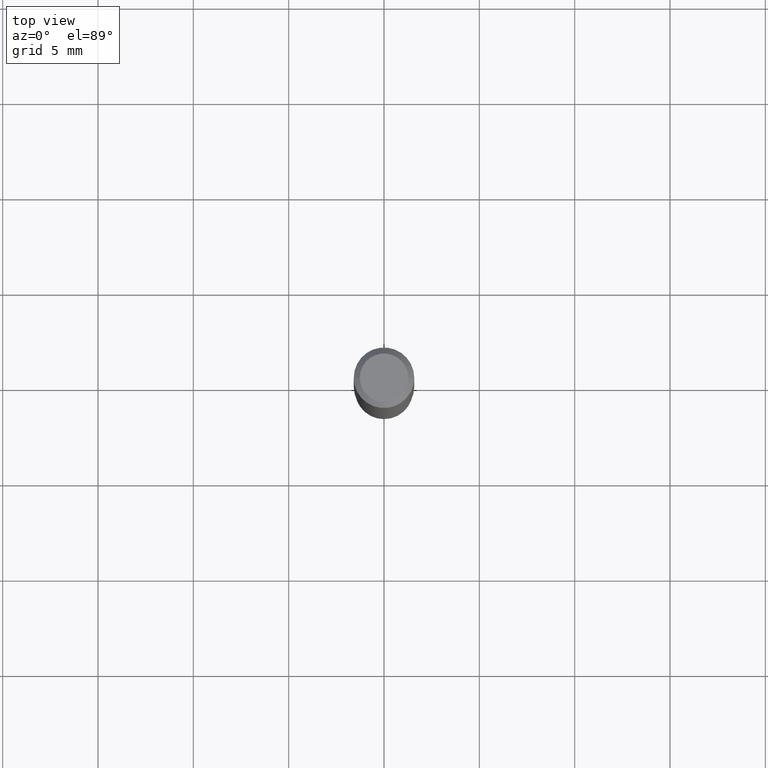
[diagram: clean part render]
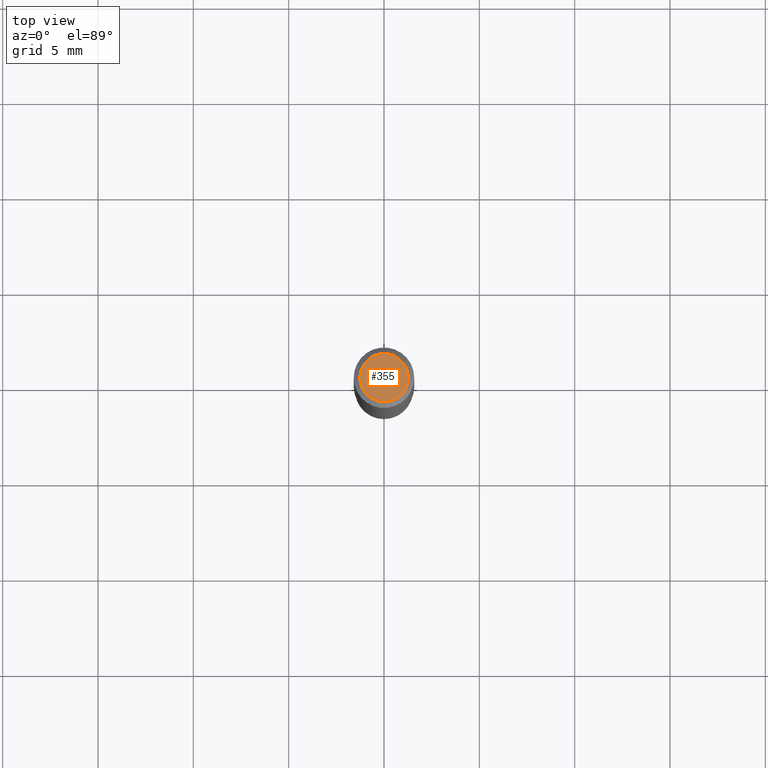
[diagram: same view with one face highlighted and labeled with its STEP entity id]
A machine part, top view. The second image highlights one B-rep face of the part: STEP entity #355.
In plain terms, the highlighted planar face has unit normal (0, -0, -1).
Its self-contained STEP definition (entity closure, byte-faithful):
#8 = AXIS2_PLACEMENT_3D ( 'NONE', #146, #350, #230 ) ;
#17 = FACE_OUTER_BOUND ( 'NONE', #48, .T. ) ;
#48 = EDGE_LOOP ( 'NONE', ( #190, #338 ) ) ;
#60 = CARTESIAN_POINT ( 'NONE',  ( -0.04999999999999999584, 3.709698922520826725E-16, -1.592040838894077649E-18 ) ) ;
#110 = AXIS2_PLACEMENT_3D ( 'NONE', #185, #481, #409 ) ;
#146 = CARTESIAN_POINT ( 'NONE',  ( 3.893286209682126177E-47, -5.558580879666067980E-33, -1.592040838891559689E-18 ) ) ;
#154 = CIRCLE ( 'NONE', #8, 0.04999999999999999584 ) ;
#161 = PLANE ( 'NONE',  #349 ) ;
#162 = CARTESIAN_POINT ( 'NONE',  ( 0.04999999999999999584, -4.077247707424184212E-16, -1.592040838888913461E-18 ) ) ;
#185 = CARTESIAN_POINT ( 'NONE',  ( 3.893286209682126177E-47, -5.558580879666067980E-33, -1.592040838891559689E-18 ) ) ;
#190 = ORIENTED_EDGE ( 'NONE', *, *, #490, .T. ) ;
#230 = DIRECTION ( 'NONE',  ( 1.000000000000000000, -6.982962677686265922E-15, 4.875957971899673662E-29 ) ) ;
#238 = VERTEX_POINT ( 'NONE', #162 ) ;
#265 = VERTEX_POINT ( 'NONE', #60 ) ;
#280 = DIRECTION ( 'NONE',  ( -1.000000000000000000, 6.982962677686265922E-15, -4.876176775795935793E-29 ) ) ;
#316 = CARTESIAN_POINT ( 'NONE',  ( 1.946643104841063088E-47, -2.779290439833033990E-33, -7.960204194457798443E-19 ) ) ;
#335 = CIRCLE ( 'NONE', #110, 0.04999999999999999584 ) ;
#338 = ORIENTED_EDGE ( 'NONE', *, *, #438, .T. ) ;
#349 = AXIS2_PLACEMENT_3D ( 'NONE', #316, #464, #280 ) ;
#350 = DIRECTION ( 'NONE',  ( -2.445468806185136597E-29, 3.491481338843145583E-15, 1.000000000000000000 ) ) ;
#355 = ADVANCED_FACE ( 'NONE', ( #17 ), #161, .F. ) ;
#409 = DIRECTION ( 'NONE',  ( 1.000000000000000000, -6.982962677686265922E-15, 4.875957971899673662E-29 ) ) ;
#438 = EDGE_CURVE ( 'NONE', #238, #265, #154, .T. ) ;
#464 = DIRECTION ( 'NONE',  ( 2.438088387897960049E-29, -3.491481338843145188E-15, -1.000000000000000000 ) ) ;
#481 = DIRECTION ( 'NONE',  ( -2.445468806185136597E-29, 3.491481338843145583E-15, 1.000000000000000000 ) ) ;
#490 = EDGE_CURVE ( 'NONE', #265, #238, #335, .T. ) ;